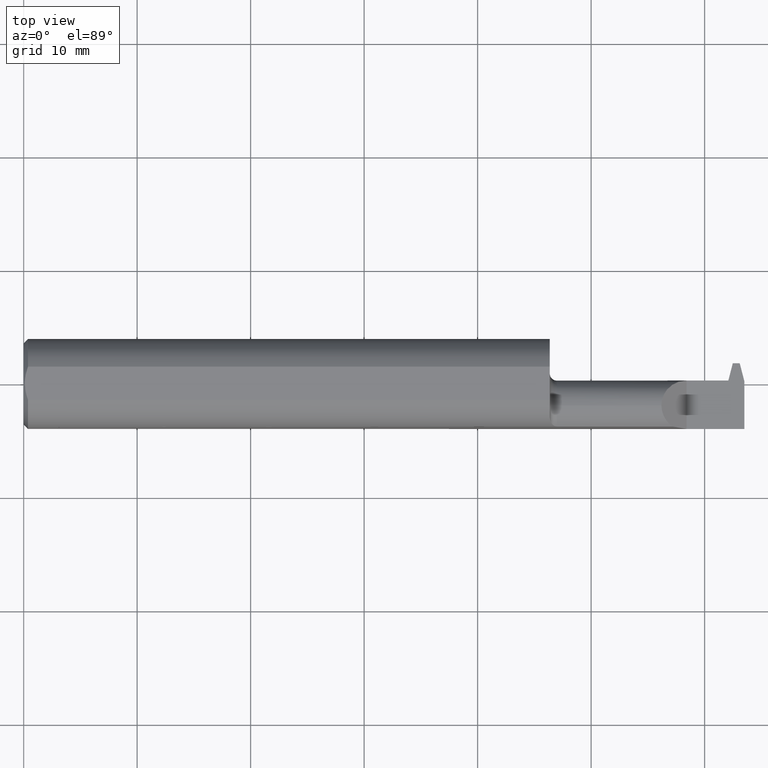
[diagram: clean part render]
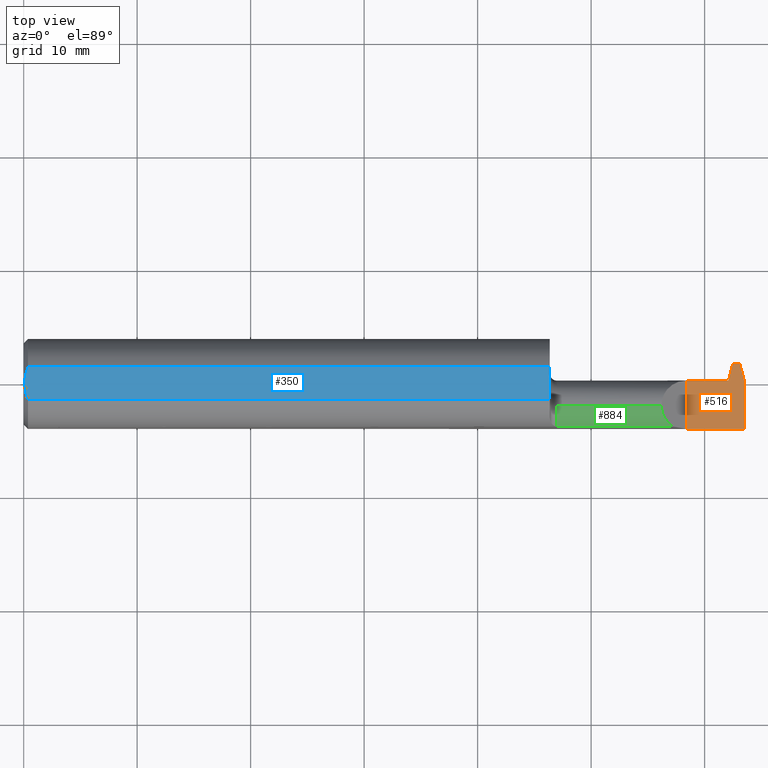
[diagram: same view with three faces highlighted in distinct colors, each labeled with its STEP entity id]
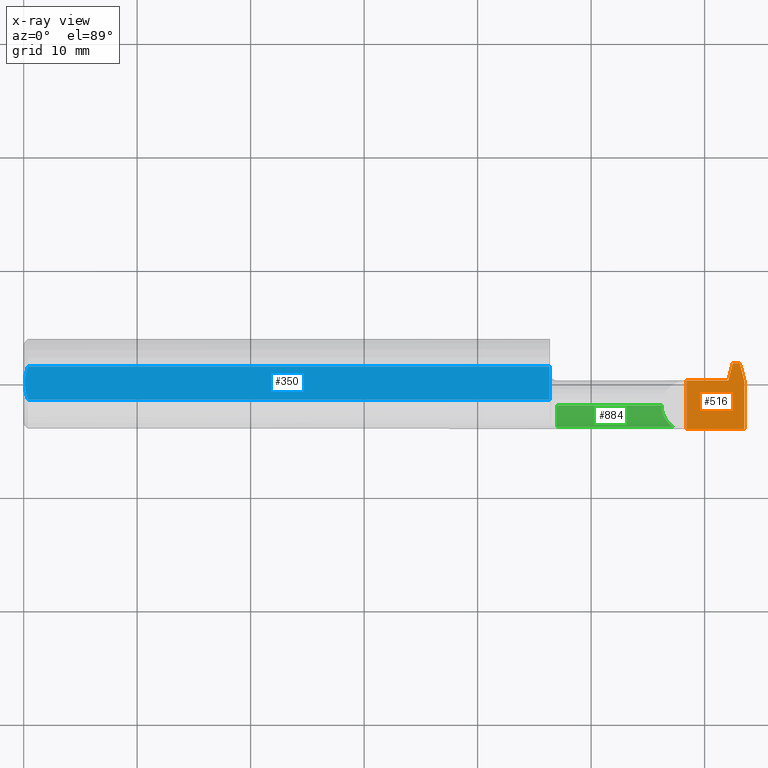
[diagram: x-ray of the same camera — body ghosted, the three highlighted faces saturated]
A machine part, top view with three faces highlighted in distinct colors.
The next image is the same camera in x-ray (body ghosted, the three faces saturated) — at least one of them is partly hidden behind the body in this view.
Their STEP definitions:

[orange] entity #516 — the highlighted planar face has unit normal (-0, 0, -1).
#14 = LINE ( 'NONE', #614, #85 ) ;
#36 = DIRECTION ( 'NONE',  ( 1.000000000000000000, 0.000000000000000000, 0.000000000000000000 ) ) ;
#54 = LINE ( 'NONE', #189, #606 ) ;
#76 = DIRECTION ( 'NONE',  ( 0.2503800040544348904, 0.9681476403781094087, -0.000000000000000000 ) ) ;
#82 = ORIENTED_EDGE ( 'NONE', *, *, #813, .F. ) ;
#85 = VECTOR ( 'NONE', #97, 39.37007874015748143 ) ;
#97 = DIRECTION ( 'NONE',  ( -0.000000000000000000, 1.000000000000000000, -0.000000000000000000 ) ) ;
#101 = VERTEX_POINT ( 'NONE', #609 ) ;
#103 = DIRECTION ( 'NONE',  ( -1.000000000000000000, 0.000000000000000000, 0.000000000000000000 ) ) ;
#119 = VECTOR ( 'NONE', #500, 39.37007874015748143 ) ;
#124 = CARTESIAN_POINT ( 'NONE',  ( 2.483431041314417609, 0.07410000000000004083, 0.000000000000000000 ) ) ;
#134 = AXIS2_PLACEMENT_3D ( 'NONE', #455, #762, #103 ) ;
#146 = VERTEX_POINT ( 'NONE', #550 ) ;
#169 = CARTESIAN_POINT ( 'NONE',  ( 2.459999999999999964, 0.07190000000000010272, -4.286122238378320280E-17 ) ) ;
#170 = EDGE_CURVE ( 'NONE', #101, #891, #770, .T. ) ;
#177 = FACE_OUTER_BOUND ( 'NONE', #376, .T. ) ;
#189 = CARTESIAN_POINT ( 'NONE',  ( 1.824999999999999956, 0.01190000000000001473, -4.286122238378320280E-17 ) ) ;
#199 = VECTOR ( 'NONE', #418, 39.37007874015748143 ) ;
#205 = VERTEX_POINT ( 'NONE', #857 ) ;
#269 = EDGE_CURVE ( 'NONE', #859, #146, #921, .T. ) ;
#273 = EDGE_CURVE ( 'NONE', #597, #205, #717, .T. ) ;
#275 = VECTOR ( 'NONE', #880, 39.37007874015748143 ) ;
#288 = ORIENTED_EDGE ( 'NONE', *, *, #858, .F. ) ;
#298 = LINE ( 'NONE', #660, #454 ) ;
#307 = ORIENTED_EDGE ( 'NONE', *, *, #269, .F. ) ;
#330 = CARTESIAN_POINT ( 'NONE',  ( 2.484000000000000430, 0.07190000000000001945, 0.000000000000000000 ) ) ;
#332 = VERTEX_POINT ( 'NONE', #655 ) ;
#339 = DIRECTION ( 'NONE',  ( 1.000000000000000000, 2.134256245050228381E-16, -0.000000000000000000 ) ) ;
#351 = CARTESIAN_POINT ( 'NONE',  ( 2.500000000000000000, -0.1560999999999999888, -4.286122238378320280E-17 ) ) ;
#376 = EDGE_LOOP ( 'NONE', ( #458, #82, #648, #908, #288, #740, #953, #307 ) ) ;
#418 = DIRECTION ( 'NONE',  ( 0.2503800040544356675, -0.9681476403781091866, 0.000000000000000000 ) ) ;
#454 = VECTOR ( 'NONE', #503, 39.37007874015748143 ) ;
#455 = CARTESIAN_POINT ( 'NONE',  ( 2.300000000000000266, 0.2000000000000000111, -4.286122238378320280E-17 ) ) ;
#458 = ORIENTED_EDGE ( 'NONE', *, *, #711, .T. ) ;
#470 = PLANE ( 'NONE',  #134 ) ;
#500 = DIRECTION ( 'NONE',  ( -1.000000000000000000, -0.000000000000000000, -0.000000000000000000 ) ) ;
#503 = DIRECTION ( 'NONE',  ( -1.000000000000000000, 2.595407707661540690E-15, 0.000000000000000000 ) ) ;
#508 = LINE ( 'NONE', #724, #275 ) ;
#516 = ADVANCED_FACE ( 'NONE', ( #177 ), #470, .F. ) ;
#549 = CARTESIAN_POINT ( 'NONE',  ( 2.434482944938646920, 0.01190000000000008065, 0.000000000000000000 ) ) ;
#550 = CARTESIAN_POINT ( 'NONE',  ( 2.500000000000000000, 0.01003259048162119527, 0.000000000000000000 ) ) ;
#567 = VECTOR ( 'NONE', #339, 39.37007874015748143 ) ;
#568 = CARTESIAN_POINT ( 'NONE',  ( 2.444482944938646707, 0.01190000000000008412, 0.000000000000000000 ) ) ;
#597 = VERTEX_POINT ( 'NONE', #549 ) ;
#606 = VECTOR ( 'NONE', #36, 39.37007874015748143 ) ;
#609 = CARTESIAN_POINT ( 'NONE',  ( 2.500000000000000000, -0.1560999999999999888, -4.286122238378320280E-17 ) ) ;
#614 = CARTESIAN_POINT ( 'NONE',  ( 2.300000000000000266, 0.2000000000000000111, -4.286122238378320280E-17 ) ) ;
#642 = VECTOR ( 'NONE', #76, 39.37007874015748854 ) ;
#648 = ORIENTED_EDGE ( 'NONE', *, *, #273, .F. ) ;
#655 = CARTESIAN_POINT ( 'NONE',  ( 2.300000000000000266, 0.01190000000000008412, -4.286122238378320280E-17 ) ) ;
#660 = CARTESIAN_POINT ( 'NONE',  ( 2.299999999999999822, 0.07190000000000051905, -4.286122238378320280E-17 ) ) ;
#711 = EDGE_CURVE ( 'NONE', #859, #940, #298, .T. ) ;
#712 = EDGE_CURVE ( 'NONE', #101, #146, #508, .T. ) ;
#717 = LINE ( 'NONE', #568, #567 ) ;
#724 = CARTESIAN_POINT ( 'NONE',  ( 2.500000000000000000, 0.2000000000000000111, -4.286122238378320280E-17 ) ) ;
#733 = LINE ( 'NONE', #948, #642 ) ;
#740 = ORIENTED_EDGE ( 'NONE', *, *, #170, .F. ) ;
#762 = DIRECTION ( 'NONE',  ( -0.000000000000000000, 0.000000000000000000, -1.000000000000000000 ) ) ;
#770 = LINE ( 'NONE', #351, #119 ) ;
#813 = EDGE_CURVE ( 'NONE', #205, #940, #733, .T. ) ;
#855 = EDGE_CURVE ( 'NONE', #332, #597, #54, .T. ) ;
#857 = CARTESIAN_POINT ( 'NONE',  ( 2.444482944938646707, 0.01190000000000008412, 0.000000000000000000 ) ) ;
#858 = EDGE_CURVE ( 'NONE', #891, #332, #14, .T. ) ;
#859 = VERTEX_POINT ( 'NONE', #330 ) ;
#880 = DIRECTION ( 'NONE',  ( -0.000000000000000000, 1.000000000000000000, -0.000000000000000000 ) ) ;
#891 = VERTEX_POINT ( 'NONE', #905 ) ;
#905 = CARTESIAN_POINT ( 'NONE',  ( 2.300000000000000266, -0.1560999999999999888, -4.286122238378320280E-17 ) ) ;
#908 = ORIENTED_EDGE ( 'NONE', *, *, #855, .F. ) ;
#921 = LINE ( 'NONE', #124, #199 ) ;
#940 = VERTEX_POINT ( 'NONE', #169 ) ;
#948 = CARTESIAN_POINT ( 'NONE',  ( 2.460568958685582786, 0.07410000000000004083, 0.000000000000000000 ) ) ;
#953 = ORIENTED_EDGE ( 'NONE', *, *, #712, .T. ) ;

[blue] entity #350 — the highlighted planar face has unit normal (-0, 0, -1).
#47 = CARTESIAN_POINT ( 'NONE',  ( 0.003999999999996986001, -0.009882491626910055310, 0.1450999999999999790 ) ) ;
#50 = CARTESIAN_POINT ( 'NONE',  ( 1.824999999999999956, -0.05756040305626777820, 0.1450999999999999790 ) ) ;
#74 = EDGE_CURVE ( 'NONE', #675, #551, #907, .T. ) ;
#93 = B_SPLINE_CURVE_WITH_KNOTS ( 'NONE', 3,
 ( #917, #414, #114, #851, #647, #270 ),
 .UNSPECIFIED., .F., .F.,
 ( 4, 2, 4 ),
 ( 0.002945485300212740808, 0.003688377603187770627, 0.004431269906162800011 ),
 .UNSPECIFIED. ) ;
#106 = CARTESIAN_POINT ( 'NONE',  ( 1.824999999999999956, 0.1000000000000000056, 0.1450999999999999790 ) ) ;
#114 = CARTESIAN_POINT ( 'NONE',  ( 0.008799784310863792772, 0.03878477980766483618, 0.1451000000000000068 ) ) ;
#122 = CARTESIAN_POINT ( 'NONE',  ( 1.824999999999999956, 0.05756040305626777126, 0.1450999999999999790 ) ) ;
#136 = DIRECTION ( 'NONE',  ( -1.000000000000000000, 0.000000000000000000, 0.000000000000000000 ) ) ;
#144 = VERTEX_POINT ( 'NONE', #685 ) ;
#145 = EDGE_CURVE ( 'NONE', #551, #144, #623, .T. ) ;
#187 = CARTESIAN_POINT ( 'NONE',  ( 0.01499999999999970107, -0.05756040305626777126, 0.1450999999999999790 ) ) ;
#191 = CARTESIAN_POINT ( 'NONE',  ( 0.005042865002153306721, -0.01979865541750971611, 0.1451000000000000068 ) ) ;
#208 = PLANE ( 'NONE',  #747 ) ;
#220 = EDGE_CURVE ( 'NONE', #817, #831, #93, .T. ) ;
#242 = EDGE_CURVE ( 'NONE', #831, #144, #437, .T. ) ;
#255 = DIRECTION ( 'NONE',  ( -1.000000000000000000, -0.000000000000000000, -0.000000000000000000 ) ) ;
#264 = CARTESIAN_POINT ( 'NONE',  ( 0.01160171645209438947, -0.04834448319362431162, 0.1450999999999999790 ) ) ;
#270 = CARTESIAN_POINT ( 'NONE',  ( 0.003999999999999595893, 1.377970445471898428E-17, 0.1450999999999999790 ) ) ;
#350 = ADVANCED_FACE ( 'NONE', ( #803 ), #208, .F. ) ;
#361 = LINE ( 'NONE', #938, #872 ) ;
#379 = ORIENTED_EDGE ( 'NONE', *, *, #74, .F. ) ;
#390 = ORIENTED_EDGE ( 'NONE', *, *, #242, .T. ) ;
#414 = CARTESIAN_POINT ( 'NONE',  ( 0.01157928343552837129, 0.04828364633877424428, 0.1451000000000000068 ) ) ;
#430 = CARTESIAN_POINT ( 'NONE',  ( 0.01499999999999970281, 0.05756040305626777126, 0.1450999999999999790 ) ) ;
#437 = B_SPLINE_CURVE_WITH_KNOTS ( 'NONE', 3,
 ( #707, #47, #191, #846, #264, #187 ),
 .UNSPECIFIED., .F., .F.,
 ( 4, 2, 4 ),
 ( 0.004431269906162800011, 0.005173847132308577804, 0.005916424358454355596 ),
 .UNSPECIFIED. ) ;
#524 = DIRECTION ( 'NONE',  ( -0.000000000000000000, 0.000000000000000000, -1.000000000000000000 ) ) ;
#551 = VERTEX_POINT ( 'NONE', #50 ) ;
#554 = ORIENTED_EDGE ( 'NONE', *, *, #797, .F. ) ;
#574 = DIRECTION ( 'NONE',  ( 1.000000000000000000, 0.000000000000000000, 0.000000000000000000 ) ) ;
#584 = ORIENTED_EDGE ( 'NONE', *, *, #220, .T. ) ;
#623 = LINE ( 'NONE', #911, #946 ) ;
#647 = CARTESIAN_POINT ( 'NONE',  ( 0.003999999999997044114, 0.009886684785571414960, 0.1450999999999999512 ) ) ;
#675 = VERTEX_POINT ( 'NONE', #122 ) ;
#685 = CARTESIAN_POINT ( 'NONE',  ( 0.01499999999999970107, -0.05756040305626777126, 0.1450999999999999790 ) ) ;
#691 = DIRECTION ( 'NONE',  ( 0.000000000000000000, -1.000000000000000000, 0.000000000000000000 ) ) ;
#707 = CARTESIAN_POINT ( 'NONE',  ( 0.003999999999999595893, 1.377970445471898428E-17, 0.1450999999999999790 ) ) ;
#734 = VECTOR ( 'NONE', #691, 39.37007874015748143 ) ;
#735 = CARTESIAN_POINT ( 'NONE',  ( 0.000000000000000000, 0.1000000000000000056, 0.1450999999999999790 ) ) ;
#747 = AXIS2_PLACEMENT_3D ( 'NONE', #735, #524, #136 ) ;
#797 = EDGE_CURVE ( 'NONE', #817, #675, #361, .T. ) ;
#803 = FACE_OUTER_BOUND ( 'NONE', #894, .T. ) ;
#806 = CARTESIAN_POINT ( 'NONE',  ( 0.003999999999999595893, 1.377970445471898428E-17, 0.1450999999999999790 ) ) ;
#817 = VERTEX_POINT ( 'NONE', #430 ) ;
#831 = VERTEX_POINT ( 'NONE', #806 ) ;
#846 = CARTESIAN_POINT ( 'NONE',  ( 0.008847869984959717479, -0.03896939155709343294, 0.1450999999999999512 ) ) ;
#851 = CARTESIAN_POINT ( 'NONE',  ( 0.005017455651907636906, 0.01961184984831247299, 0.1450999999999999790 ) ) ;
#872 = VECTOR ( 'NONE', #574, 39.37007874015748143 ) ;
#882 = ORIENTED_EDGE ( 'NONE', *, *, #145, .F. ) ;
#894 = EDGE_LOOP ( 'NONE', ( #379, #554, #584, #390, #882 ) ) ;
#907 = LINE ( 'NONE', #106, #734 ) ;
#911 = CARTESIAN_POINT ( 'NONE',  ( 2.500000000000000000, -0.05756040305626777126, 0.1450999999999999790 ) ) ;
#917 = CARTESIAN_POINT ( 'NONE',  ( 0.01499999999999970281, 0.05756040305626777126, 0.1450999999999999790 ) ) ;
#938 = CARTESIAN_POINT ( 'NONE',  ( 2.500000000000000000, 0.05756040305626777126, 0.1450999999999999790 ) ) ;
#946 = VECTOR ( 'NONE', #255, 39.37007874015748143 ) ;

[green] entity #884 — the highlighted cylindrical surface (edge-blend (fillet) strip) has radius 2.2225 mm, axis along (-1, -0, -0).
#10 = ORIENTED_EDGE ( 'NONE', *, *, #289, .T. ) ;
#19 = AXIS2_PLACEMENT_3D ( 'NONE', #295, #878, #218 ) ;
#24 = VERTEX_POINT ( 'NONE', #90 ) ;
#61 = CARTESIAN_POINT ( 'NONE',  ( 2.212499999999999911, -0.1054264415332321903, 0.08750000000000003608 ) ) ;
#90 = CARTESIAN_POINT ( 'NONE',  ( 2.212499999999999911, -0.07560000000000001441, 0.08750000000000002220 ) ) ;
#112 = DIRECTION ( 'NONE',  ( -1.000000000000000000, -0.000000000000000000, -0.000000000000000000 ) ) ;
#135 = CARTESIAN_POINT ( 'NONE',  ( 2.251340690561190794, -0.1483222222222220776, 0.04865930943880889675 ) ) ;
#167 =( BOUNDED_CURVE ( )  B_SPLINE_CURVE ( 3, ( #426, #61, #370, #661 ),
 .UNSPECIFIED., .F., .F. ) 
 B_SPLINE_CURVE_WITH_KNOTS ( ( 4, 4 ),
 ( 0.000000000000000000, 0.9811027303930319743 ),
 .UNSPECIFIED. ) 
 CURVE ( )  GEOMETRIC_REPRESENTATION_ITEM ( )  RATIONAL_B_SPLINE_CURVE ( ( 1.000000000000000000, 0.9213821585145209880, 0.9213821585145209880, 1.000000000000000000 ) ) 
 REPRESENTATION_ITEM ( '' )  );
#186 = CARTESIAN_POINT ( 'NONE',  ( 1.849999999999999867, -0.1483222222222221054, 0.04865930943880881349 ) ) ;
#218 = DIRECTION ( 'NONE',  ( 0.000000000000000000, 0.000000000000000000, -1.000000000000000000 ) ) ;
#284 = CARTESIAN_POINT ( 'NONE',  ( 2.133750000000000036, -0.1483222222222221054, 0.04865930943880881349 ) ) ;
#289 = EDGE_CURVE ( 'NONE', #681, #814, #931, .T. ) ;
#295 = CARTESIAN_POINT ( 'NONE',  ( 1.849999999999999867, -0.07560000000000001441, 0.000000000000000000 ) ) ;
#370 = CARTESIAN_POINT ( 'NONE',  ( 2.226551603598015294, -0.1317355473876610505, 0.07344839640198407016 ) ) ;
#391 = DIRECTION ( 'NONE',  ( 0.000000000000000000, 0.000000000000000000, 1.000000000000000000 ) ) ;
#407 = VERTEX_POINT ( 'NONE', #665 ) ;
#408 = AXIS2_PLACEMENT_3D ( 'NONE', #840, #693, #391 ) ;
#412 = EDGE_CURVE ( 'NONE', #24, #814, #167, .T. ) ;
#426 = CARTESIAN_POINT ( 'NONE',  ( 2.212499999999999911, -0.07560000000000001441, 0.08750000000000002220 ) ) ;
#477 = LINE ( 'NONE', #543, #745 ) ;
#543 = CARTESIAN_POINT ( 'NONE',  ( 1.824999999999999956, -0.07560000000000001441, 0.08750000000000002220 ) ) ;
#548 = FACE_OUTER_BOUND ( 'NONE', #777, .T. ) ;
#583 = VECTOR ( 'NONE', #863, 39.37007874015748143 ) ;
#620 = CYLINDRICAL_SURFACE ( 'NONE', #408, 0.08750000000000002220 ) ;
#641 = ORIENTED_EDGE ( 'NONE', *, *, #924, .T. ) ;
#661 = CARTESIAN_POINT ( 'NONE',  ( 2.251340690561190794, -0.1483222222222220776, 0.04865930943880889675 ) ) ;
#665 = CARTESIAN_POINT ( 'NONE',  ( 1.849999999999999867, -0.07560000000000001441, 0.08750000000000002220 ) ) ;
#668 = ORIENTED_EDGE ( 'NONE', *, *, #412, .F. ) ;
#681 = VERTEX_POINT ( 'NONE', #186 ) ;
#693 = DIRECTION ( 'NONE',  ( -1.000000000000000000, -0.000000000000000000, -0.000000000000000000 ) ) ;
#745 = VECTOR ( 'NONE', #112, 39.37007874015748143 ) ;
#777 = EDGE_LOOP ( 'NONE', ( #668, #641, #898, #10 ) ) ;
#814 = VERTEX_POINT ( 'NONE', #135 ) ;
#819 = EDGE_CURVE ( 'NONE', #407, #681, #944, .T. ) ;
#840 = CARTESIAN_POINT ( 'NONE',  ( 1.824999999999999956, -0.07560000000000001441, 0.000000000000000000 ) ) ;
#863 = DIRECTION ( 'NONE',  ( 1.000000000000000000, 0.000000000000000000, 0.000000000000000000 ) ) ;
#878 = DIRECTION ( 'NONE',  ( 1.000000000000000000, 0.000000000000000000, 0.000000000000000000 ) ) ;
#884 = ADVANCED_FACE ( 'NONE', ( #548 ), #620, .T. ) ;
#898 = ORIENTED_EDGE ( 'NONE', *, *, #819, .T. ) ;
#924 = EDGE_CURVE ( 'NONE', #24, #407, #477, .T. ) ;
#931 = LINE ( 'NONE', #284, #583 ) ;
#944 = CIRCLE ( 'NONE', #19, 0.08750000000000002220 ) ;